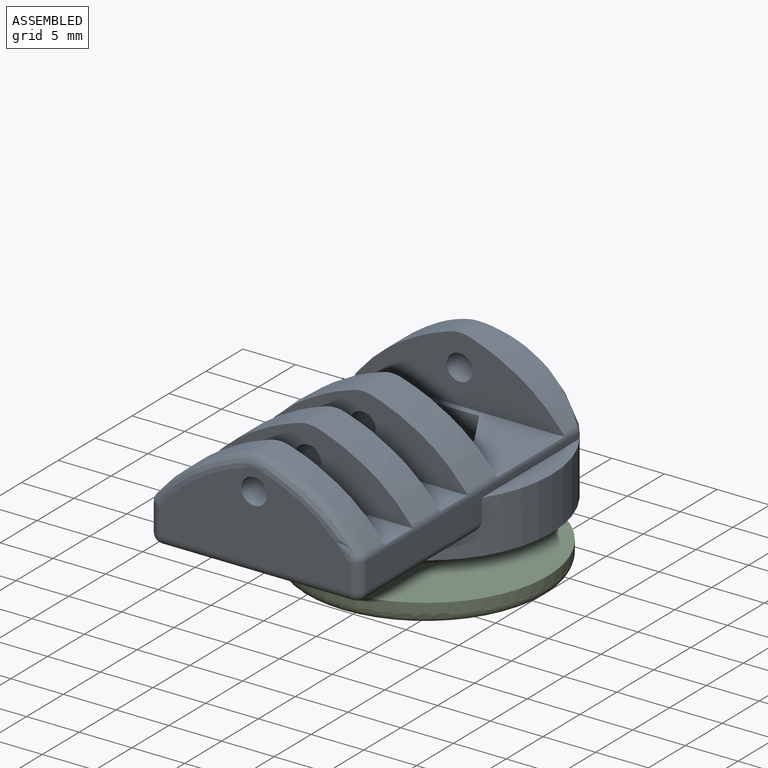
[diagram: assembled view]
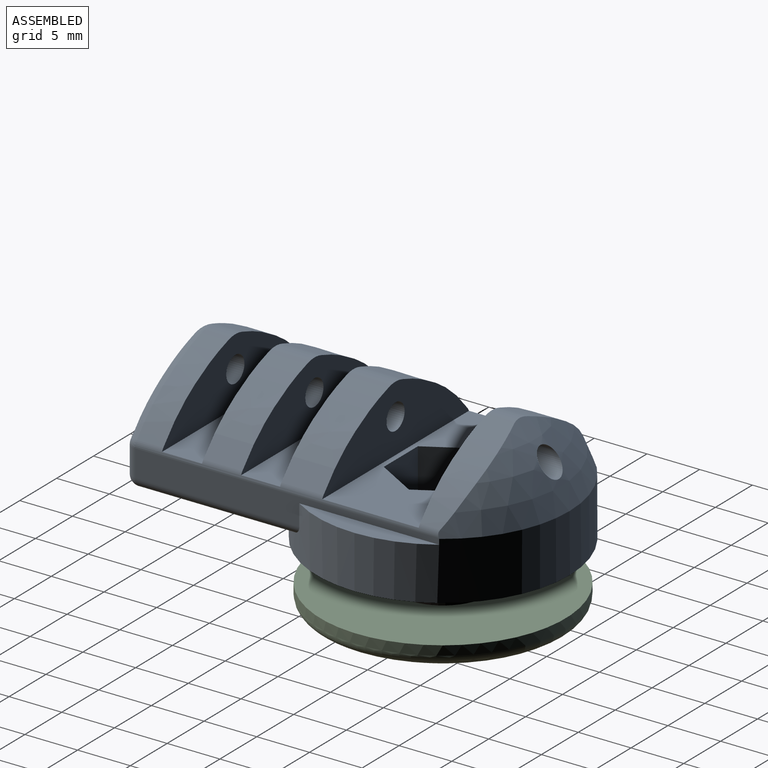
[diagram: assembled view, second angle]
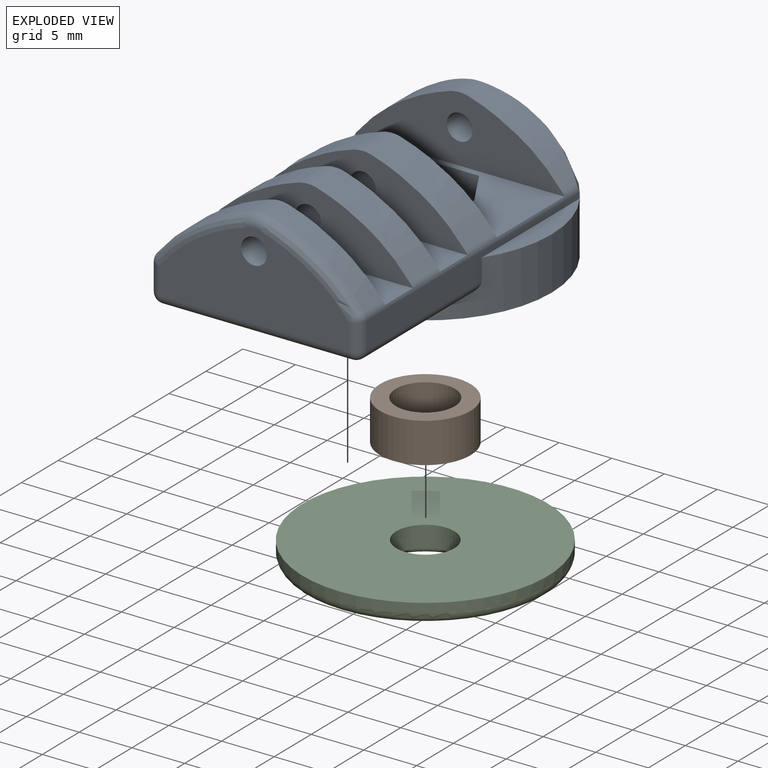
[diagram: exploded view]
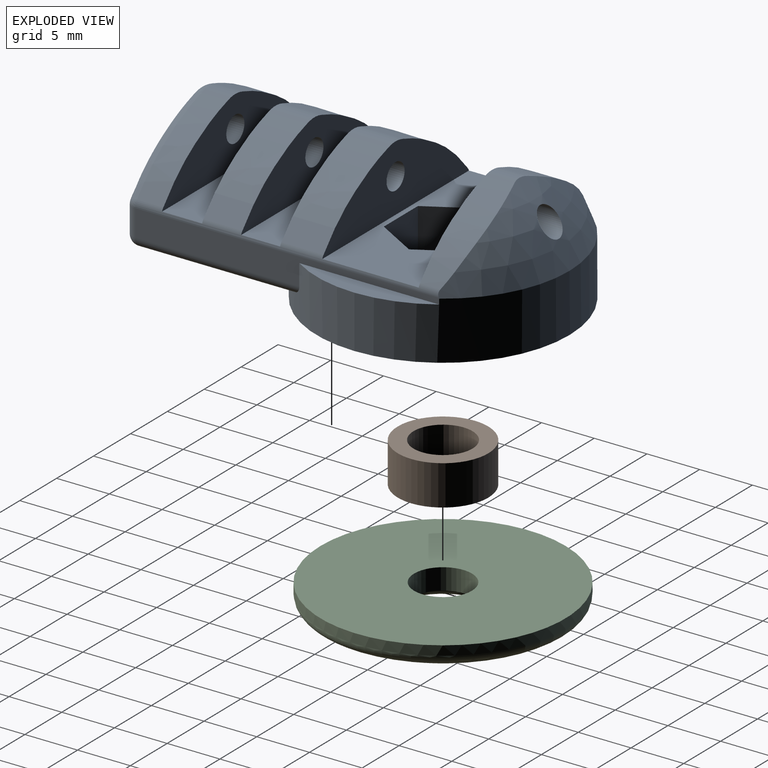
[diagram: exploded view, second angle]
ASSEMBLY  parts=3 mates=2
PART A: 56 faces, bbox 24x35.2x12.4 mm
  f0: plane 19.87x9.15mm, normal (0,0,1), area 126.4mm2, adj f25,f26,f35,f36,f37,f38,f39,f40
  f1: cylinder r=2.75mm len=5.5mm, axis (0,0,1), area 32.8mm2, adj f23,f41
  f2: cylinder r=3mm len=3.7mm, axis (0,-1,0), area 7.4mm2, adj f5,f9,f29,f31
  f3: cylinder r=3mm len=4mm, axis (0,-1,0), area 8mm2, adj f6,f10,f26,f28
  f4: cylinder r=3mm len=2.74mm, axis (0,-1,0), area 5.4mm2, adj f7,f11,f24,f25
  f5: extruded ~8.79x5.86mm, area 39.7mm2, adj f2,f29,f31,f55
  f6: extruded ~8.79x5.86mm, area 42.9mm2, adj f3,f26,f28,f55
  f7: extruded ~8.79x5.86mm, area 25mm2, adj f4,f24,f25,f55
  f8: cylinder r=1.22mm len=6.33mm, axis (0,-1,0), area 42.1mm2, adj f24,f25
  f9: extruded ~8.79x5.86mm, area 39.7mm2, adj f2,f29,f31,f49
  f10: extruded ~8.79x5.86mm, area 42.9mm2, adj f3,f26,f28,f49
  f11: extruded ~8.79x5.86mm, area 25mm2, adj f4,f24,f25,f49
  f12: plane 28.83x2.54mm, normal (-1,0,0), area 46.8mm2, adj f13,f21,f24,f46,f48,f49
  f13: cylinder r=12mm len=24mm, axis (0,0,-1), area 318.6mm2, adj f12,f14,f19,f21,f22,f23,f24,f43
  f14: plane 28.83x2.54mm, normal (1,0,0), area 46.8mm2, adj f13,f22,f24,f42,f43,f55
  f15: cylinder r=3mm len=2.5mm, axis (0,-1,0), area 5mm2, adj f16,f18,f32,f52
  f16: extruded ~8.79x5.86mm, area 26.8mm2, adj f15,f32,f53,f55
  f17: cylinder r=1.22mm len=3.5mm, axis (0,-1,0), area 26.9mm2, adj f20,f32
  f18: extruded ~8.79x5.86mm, area 26.8mm2, adj f15,f32,f49,f51
  f19: plane 18x14.26mm, normal (0,0,-1), area 206mm2, adj f13,f43,f45,f46
  f20: plane 18.01x8.2mm, normal (0,-1,0), area 105mm2, adj f17,f42,f45,f48,f51,f52,f53
  f21: plane 13.27x2mm, normal (0,0,1), area 18mm2, adj f12,f13
  f22: plane 13.27x2mm, normal (0,0,1), area 18mm2, adj f13,f14
  f23: plane 24x24mm, normal (0,0,-1), area 428.6mm2, adj f1,f13
  f24: sphere r=12.5mm, area 109.8mm2, adj f4,f7,f8,f11,f12,f13,f14,f49
  f25: plane 19.87x6.3mm, normal (0,-1,0), area 75.3mm2, adj f0,f4,f7,f8,f11,f49,f55
  f26: plane 19.87x6.3mm, normal (0,1,0), area 75.3mm2, adj f0,f3,f6,f10,f33,f49,f55
  f27: plane 19.87x3.7mm, normal (0,0,1), area 73.5mm2, adj f28,f29,f49,f55
  f28: plane 19.87x6.3mm, normal (0,-1,0), area 75.3mm2, adj f3,f6,f10,f27,f33,f49,f55
  f29: plane 19.87x6.3mm, normal (0,1,0), area 75.3mm2, adj f2,f5,f9,f27,f34,f49,f55
  f30: plane 19.87x3.8mm, normal (0,0,1), area 75.5mm2, adj f31,f32,f49,f55
  f31: plane 19.87x6.3mm, normal (0,-1,0), area 75.3mm2, adj f2,f5,f9,f30,f34,f49,f55
  f32: plane 19.87x6.3mm, normal (0,1,0), area 75.3mm2, adj f15,f16,f17,f18,f30,f49,f55
  f33: cylinder r=1.22mm len=4mm, axis (0,-1,0), area 30.8mm2, adj f26,f28
  f34: cylinder r=1.22mm len=3.7mm, axis (0,-1,0), area 28.5mm2, adj f29,f31
  f35: plane 4x4mm, normal (-0.87,0.5,0), area 18.5mm2, adj f0,f36,f40,f41
  f36: plane 4x4mm, normal (-0.87,-0.5,0), area 18.5mm2, adj f0,f35,f37,f41
  f37: plane 4.62x4mm, normal (0,-1,0), area 18.5mm2, adj f0,f36,f38,f41
  f38: plane 4x4mm, normal (0.87,-0.5,0), area 18.5mm2, adj f0,f37,f39,f41
  f39: plane 4x4mm, normal (0.87,0.5,0), area 18.5mm2, adj f0,f38,f40,f41
  f40: plane 4.62x4mm, normal (0,1,0), area 18.5mm2, adj f0,f35,f39,f41
  f41: plane 9.24x8mm, normal (0,0,1), area 31.7mm2, adj f1,f35,f36,f37,f38,f39,f40
  f42: cylinder r=1mm len=2.54mm, axis (0,0,-1), area 4mm2, adj f14,f20,f44,f54
  f43: cylinder r=1mm len=15.57mm, axis (0,1,0), area 23.4mm2, adj f13,f14,f19,f44
  f44: sphere r=1mm, area 1.6mm2, adj f42,f43,f45
  f45: cylinder r=1mm len=18mm, axis (1,0,0), area 28.3mm2, adj f19,f20,f44,f47
  f46: cylinder r=1mm len=15.57mm, axis (0,-1,0), area 23.4mm2, adj f12,f13,f19,f47
  f47: sphere r=1mm, area 1.6mm2, adj f45,f46,f48
  f48: cylinder r=1mm len=2.54mm, axis (0,0,-1), area 4mm2, adj f12,f20,f47,f50
  f49: cylinder r=1mm len=28.81mm, axis (0,-1,0), area 14.5mm2, adj f0,f9,f10,f11,f12,f18,f24,f25
  f50: sphere r=1mm, area 0.9mm2, adj f48,f49,f51
  f51: bspline ~9.71x7.02mm, area 16.5mm2, adj f18,f20,f50,f52
  f52: torus R=2mm, axis (0,1,0), area 2.8mm2, adj f15,f20,f51,f53
  f53: bspline ~9.71x7.02mm, area 16.5mm2, adj f16,f20,f52,f54
  f54: sphere r=1mm, area 0.9mm2, adj f42,f53,f55
  f55: cylinder r=1mm len=28.81mm, axis (0,-1,0), area 14.5mm2, adj f0,f5,f6,f7,f14,f16,f24,f25
PART B: 4 faces, bbox 8.6x8.6x3.8 mm
  f0: cylinder r=2.8mm len=5.6mm, axis (0,0,-1), area 66.9mm2, adj f2,f3
  f1: cylinder r=4.3mm len=8.6mm, axis (0,0,-1), area 102.7mm2, adj f2,f3
  f2: plane 8.6x8.6mm, normal (0,0,1), area 33.5mm2, adj f0,f1
  f3: plane 8.6x8.6mm, normal (0,0,-1), area 33.5mm2, adj f0,f1
PART C: 8 faces, bbox 25.2x3.3x25.2 mm
  f0: plane 9x9mm, normal (0,-1,0), area 39.9mm2, adj f1,f3
  f1: cylinder r=4.5mm len=9mm, axis (0,1,0), area 21.9mm2, adj f0,f2
  f2: torus R=5mm, axis (0,-1,0), area 24.1mm2, adj f1
  f3: cylinder r=2.75mm len=5.5mm, axis (0,1,0), area 34.6mm2, adj f0,f4
  f4: plane 23.25x23.25mm, normal (0,1,0), area 400.8mm2, adj f3,f5
  f5: cylinder r=11.62mm len=23.25mm, axis (0,1,0), area 66.3mm2, adj f4,f6
  f6: torus R=10.62mm, axis (0,-1,0), area 79.1mm2, adj f5
  f7: revolved ~22.16x22.16mm, area 638.4mm2
PLACE A t=(-10.49,-16.68,-4.25)mm
PLACE B t=(-10.49,-16.68,-10.05)mm
PLACE C rot(axis=(1,0,0),90deg) t=(-10.49,-16.68,-10.05)mm
MATE fastened C.f1 <-> B.f0  axis (0,0,1) through (-10.49,-16.68,-10.05)mm
MATE fastened B.f0 <-> A.f1  axis (0,0,1) through (-10.49,-16.68,-6.25)mm
